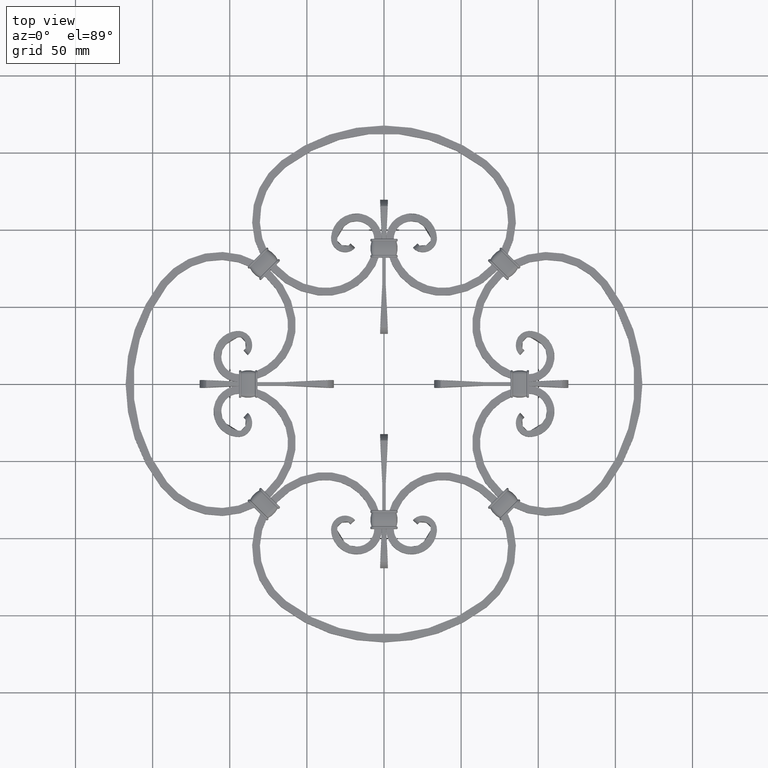
[diagram: clean part render]
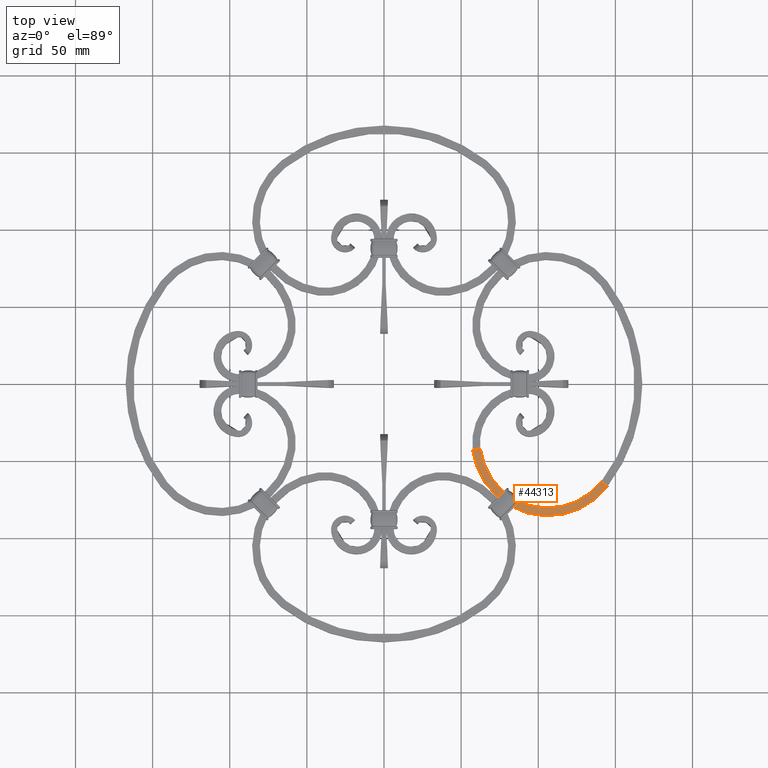
[diagram: same view with one face highlighted and labeled with its STEP entity id]
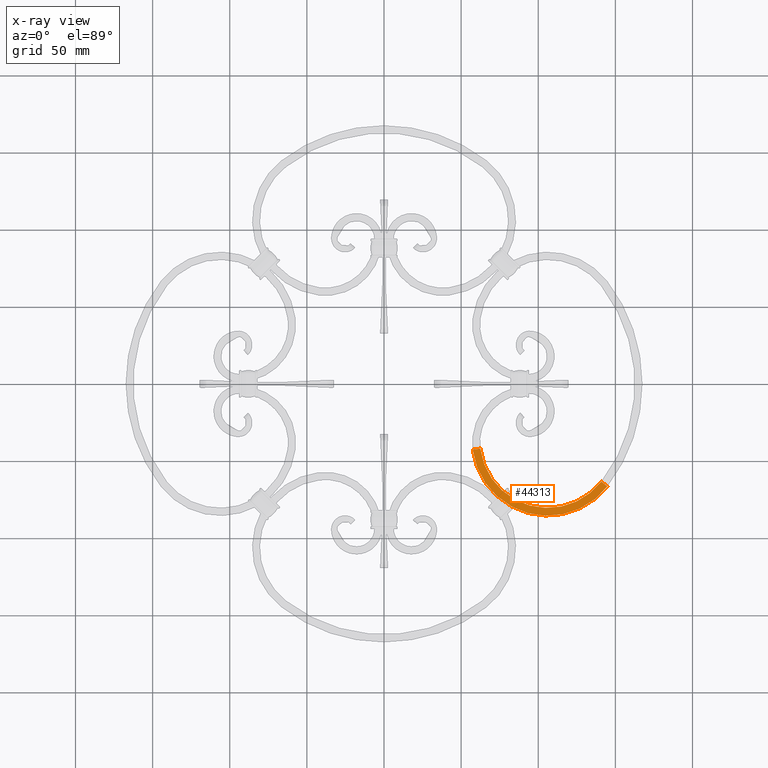
[diagram: x-ray of the same camera — body ghosted, the highlighted face saturated]
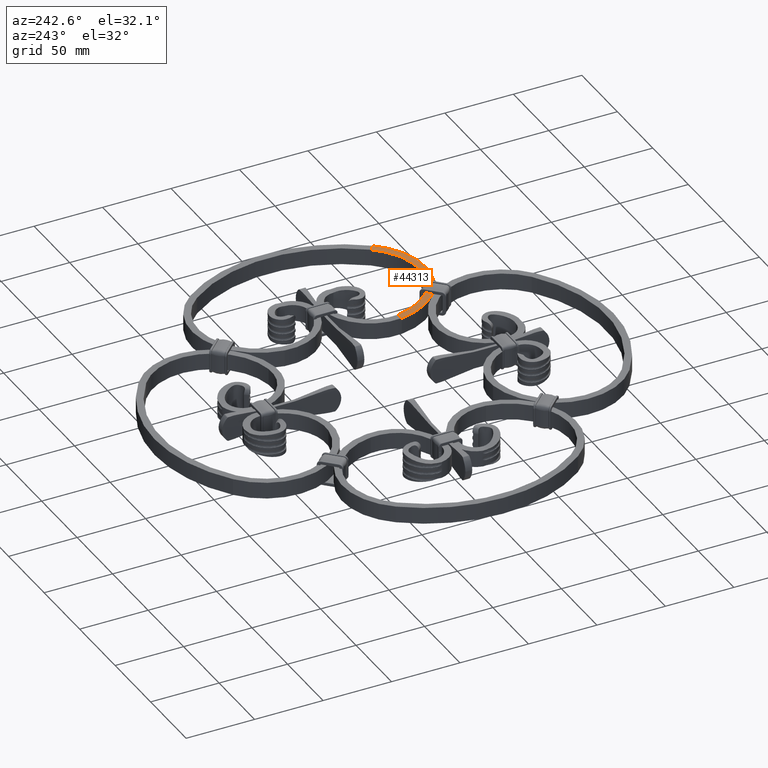
[diagram: same view with one face highlighted and labeled with its STEP entity id]
A machine part, top view. The second image highlights one B-rep face of the part: STEP entity #44313.
The next image is the same camera in x-ray: the body ghosted, the highlighted face saturated — about 0% of this face is hidden behind the body in this view.
A second angle (auxiliary view) of the same face is appended — the face is thin or edge-on in the first view.
In plain terms, the highlighted planar face has unit normal (0, 0, 1).
Its self-contained STEP definition (entity closure, byte-faithful):
#1737 = DIRECTION ( 'NONE',  ( 0.7903160693451023455, -0.6126993639093379906, 0.000000000000000000 ) ) ;
#2174 = CARTESIAN_POINT ( 'NONE',  ( 106.0476027397259600, -36.55927214299121886, 5.999999999999998224 ) ) ;
#2312 = LINE ( 'NONE', #55312, #64745 ) ;
#11733 = VERTEX_POINT ( 'NONE', #39183 ) ;
#11955 = ORIENTED_EDGE ( 'NONE', *, *, #21366, .F. ) ;
#15391 = DIRECTION ( 'NONE',  ( 0.7903160693451022345, -0.6126993639093379906, 0.000000000000000000 ) ) ;
#17801 = AXIS2_PLACEMENT_3D ( 'NONE', #2174, #37961, #1737 ) ;
#18158 = CARTESIAN_POINT ( 'NONE',  ( 62.45983660904758494, -42.11752801520482592, 5.999999999999998224 ) ) ;
#18528 = VERTEX_POINT ( 'NONE', #18158 ) ;
#19928 = CARTESIAN_POINT ( 'NONE',  ( 106.0476027397259600, -36.55927214299121886, 5.999999999999998224 ) ) ;
#20216 = EDGE_CURVE ( 'NONE', #46328, #18528, #27096, .T. ) ;
#21366 = EDGE_CURVE ( 'NONE', #11733, #34799, #44791, .T. ) ;
#24719 = CARTESIAN_POINT ( 'NONE',  ( 140.7746660638400158, -63.48172815069384711, 5.999999999999998224 ) ) ;
#25606 = DIRECTION ( 'NONE',  ( -0.7903160693451022345, 0.6126993639093381017, 0.000000000000000000 ) ) ;
#27096 = CIRCLE ( 'NONE', #64623, 43.94072785700880956 ) ;
#27394 = ORIENTED_EDGE ( 'NONE', *, *, #44411, .T. ) ;
#30050 = FACE_OUTER_BOUND ( 'NONE', #56414, .T. ) ;
#30835 = VECTOR ( 'NONE', #25606, 1000.000000000000227 ) ;
#34799 = VERTEX_POINT ( 'NONE', #63295 ) ;
#37961 = DIRECTION ( 'NONE',  ( -0.000000000000000000, -0.000000000000000000, -1.000000000000000000 ) ) ;
#39183 = CARTESIAN_POINT ( 'NONE',  ( 144.7262464105655226, -66.54522497024055383, 5.999999999999998224 ) ) ;
#44313 = ADVANCED_FACE ( 'NONE', ( #30050 ), #45302, .T. ) ;
#44411 = EDGE_CURVE ( 'NONE', #11733, #46328, #55182, .T. ) ;
#44763 = ORIENTED_EDGE ( 'NONE', *, *, #57031, .F. ) ;
#44791 = CIRCLE ( 'NONE', #17801, 48.94072785700881667 ) ;
#45302 = PLANE ( 'NONE',  #63324 ) ;
#45596 = ORIENTED_EDGE ( 'NONE', *, *, #20216, .T. ) ;
#46328 = VERTEX_POINT ( 'NONE', #47870 ) ;
#47870 = CARTESIAN_POINT ( 'NONE',  ( 140.7746660638400442, -63.48172815069384711, 5.999999999999998224 ) ) ;
#51117 = DIRECTION ( 'NONE',  ( -0.000000000000000000, -0.000000000000000000, -1.000000000000000000 ) ) ;
#51143 = DIRECTION ( 'NONE',  ( 0.000000000000000000, 0.000000000000000000, 1.000000000000000000 ) ) ;
#52285 = CARTESIAN_POINT ( 'NONE',  ( 140.7746660638400158, -63.48172815069384711, 5.999999999999998224 ) ) ;
#55182 = LINE ( 'NONE', #52285, #30835 ) ;
#55312 = CARTESIAN_POINT ( 'NONE',  ( 62.45983660904757784, -42.11752801520482592, 5.999999999999998224 ) ) ;
#56414 = EDGE_LOOP ( 'NONE', ( #45596, #44763, #11955, #27394 ) ) ;
#57031 = EDGE_CURVE ( 'NONE', #34799, #18528, #2312, .T. ) ;
#63295 = CARTESIAN_POINT ( 'NONE',  ( 57.49999999999994316, -42.75000000000002132, 5.999999999999998224 ) ) ;
#63324 = AXIS2_PLACEMENT_3D ( 'NONE', #24719, #51143, #66639 ) ;
#64623 = AXIS2_PLACEMENT_3D ( 'NONE', #19928, #51117, #15391 ) ;
#64745 = VECTOR ( 'NONE', #67324, 1000.000000000000114 ) ;
#66639 = DIRECTION ( 'NONE',  ( -1.000000000000000000, 0.000000000000000000, 0.000000000000000000 ) ) ;
#67324 = DIRECTION ( 'NONE',  ( 0.9919673218095286238, 0.1264943969590398565, 0.000000000000000000 ) ) ;